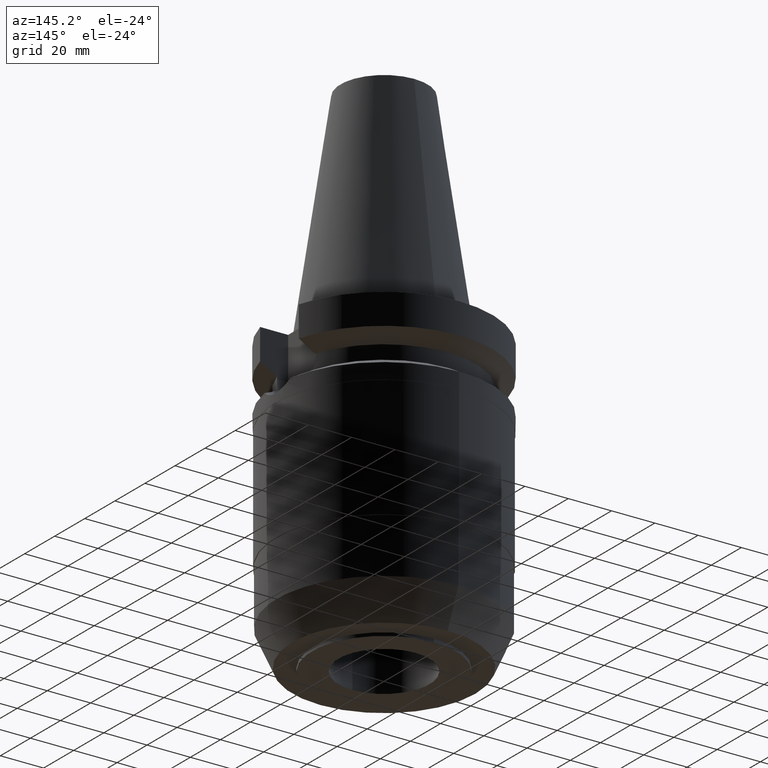
[diagram: clean part render]
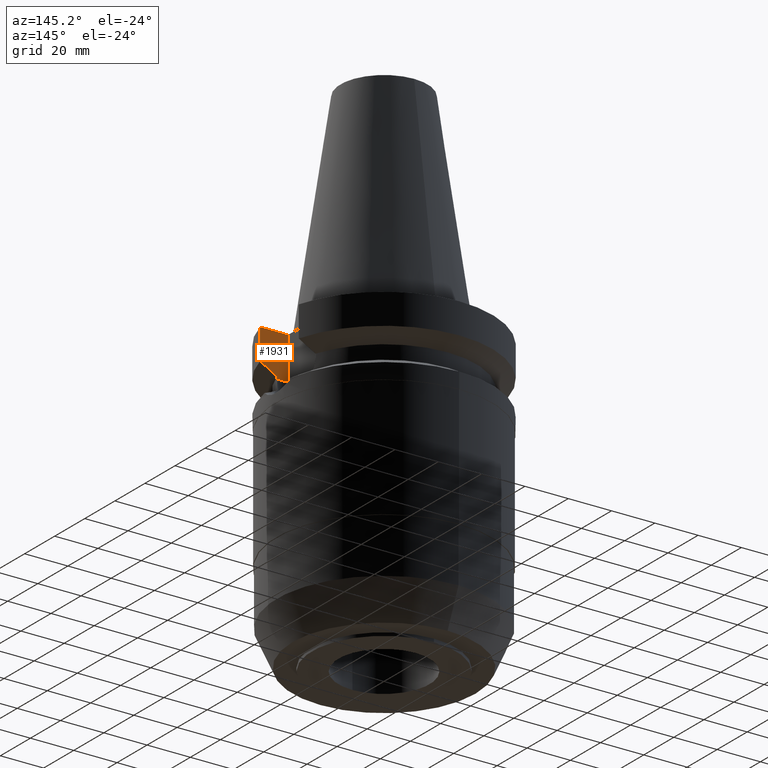
[diagram: same view with one face highlighted and labeled with its STEP entity id]
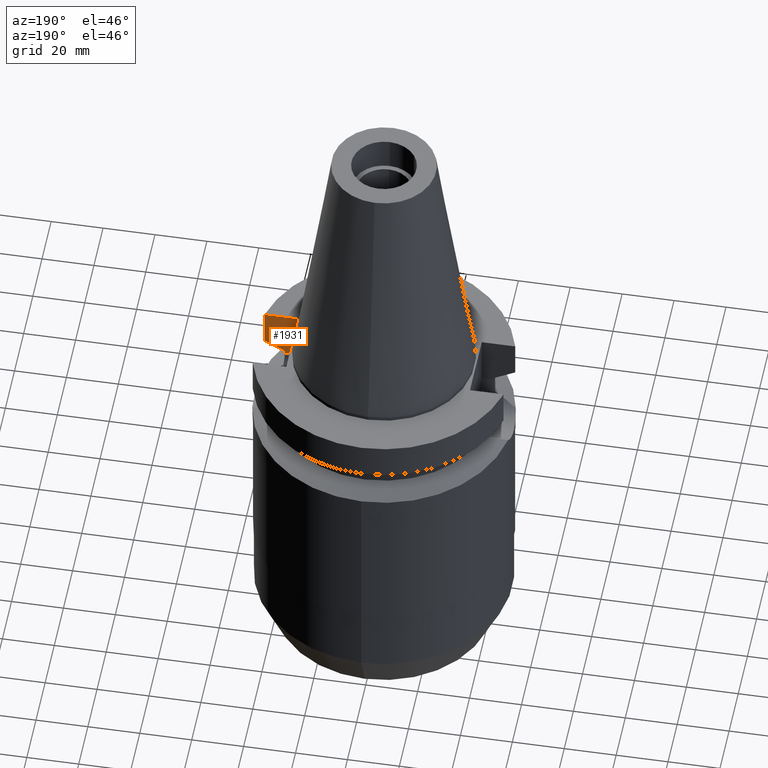
[diagram: same view with one face highlighted and labeled with its STEP entity id]
A machine part, auxiliary view. The second image highlights one B-rep face of the part: STEP entity #1931.
A second angle (auxiliary view) of the same face is appended — the face is thin or edge-on in the first view.
In plain terms, the highlighted planar face has unit normal (0, -1, 0).
Its self-contained STEP definition (entity closure, byte-faithful):
#475=DIRECTION('',(-1.E0,-3.510427359435E-14,0.E0));
#476=VECTOR('',#475,5.110831884819E0);
#477=CARTESIAN_POINT('',(4.051083188482E1,-1.285E1,-2.115E1));
#478=LINE('',#477,#476);
#702=DIRECTION('',(0.E0,0.E0,1.E0));
#703=VECTOR('',#702,1.965E1);
#704=CARTESIAN_POINT('',(3.54E1,-1.285E1,-2.115E1));
#705=LINE('',#704,#703);
#746=DIRECTION('',(1.E0,0.E0,0.E0));
#747=VECTOR('',#746,1.292057015392E1);
#748=CARTESIAN_POINT('',(3.54E1,-1.285E1,-1.5E0));
#749=LINE('',#748,#747);
#849=DIRECTION('',(-9.394719324447E-7,-2.961776035332E-6,-9.999999999952E-1));
#850=VECTOR('',#849,1.157154443732E0);
#851=CARTESIAN_POINT('',(4.051083297193E1,-1.284999657277E1,-1.999284555627E1));
#852=LINE('',#851,#850);
#856=CARTESIAN_POINT('',(4.051083188482E1,-1.285E1,-2.115E1));
#905=DIRECTION('',(-7.244853945568E-8,-2.724320977615E-7,-1.E0));
#906=VECTOR('',#905,1.416265767283E1);
#907=CARTESIAN_POINT('',(4.832057015392E1,-1.285E1,-1.5E0));
#908=LINE('',#907,#906);
#912=CARTESIAN_POINT('',(4.051083297193E1,-1.284999657277E1,-1.999284555627E1));
#913=CARTESIAN_POINT('',(4.138011667874E1,-1.284999657277E1,-1.951445436022E1));
#914=CARTESIAN_POINT('',(4.311729625638E1,-1.285000211382E1,-1.855526475180E1));
#915=CARTESIAN_POINT('',(4.572065046215E1,-1.284999774247E1,-1.711204885682E1));
#916=CARTESIAN_POINT('',(4.745408728565E1,-1.285000385836E1,-1.614611801699E1));
#917=CARTESIAN_POINT('',(4.832056912786E1,-1.285000385836E1,-1.566265767283E1));
#1138=VERTEX_POINT('',#856);
#1139=CARTESIAN_POINT('',(3.54E1,-1.285E1,-2.115E1));
#1140=VERTEX_POINT('',#1139);
#1167=CARTESIAN_POINT('',(4.051083188482E1,-1.285E1,-1.999281925465E1));
#1169=VERTEX_POINT('',#1167);
#1193=CARTESIAN_POINT('',(3.54E1,-1.285E1,-1.5E0));
#1194=VERTEX_POINT('',#1193);
#1195=CARTESIAN_POINT('',(4.832057015392E1,-1.285E1,-1.5E0));
#1196=VERTEX_POINT('',#1195);
#1213=CARTESIAN_POINT('',(4.832057015392E1,-1.285E1,-1.566269223573E1));
#1215=VERTEX_POINT('',#1213);
#1918=CARTESIAN_POINT('',(3.54E1,-1.285E1,-1.5E0));
#1919=DIRECTION('',(0.E0,-1.E0,0.E0));
#1920=DIRECTION('',(0.E0,0.E0,-1.E0));
#1921=AXIS2_PLACEMENT_3D('',#1918,#1919,#1920);
#1922=PLANE('',#1921);
#1923=ORIENTED_EDGE('',*,*,#1878,.F.);
#1924=ORIENTED_EDGE('',*,*,#1896,.T.);
#1925=ORIENTED_EDGE('',*,*,#1911,.F.);
#1926=ORIENTED_EDGE('',*,*,#1818,.F.);
#1927=ORIENTED_EDGE('',*,*,#1798,.F.);
#1928=ORIENTED_EDGE('',*,*,#1661,.F.);
#1929=EDGE_LOOP('',(#1923,#1924,#1925,#1926,#1927,#1928));
#1930=FACE_OUTER_BOUND('',#1929,.F.);
#918=B_SPLINE_CURVE_WITH_KNOTS('',3,(#912,#913,#914,#915,#916,#917),
.UNSPECIFIED.,.F.,.F.,(4,1,1,4),(0.E0,3.333333333333E-1,6.666666666667E-1,1.E0),
.UNSPECIFIED.);
#1661=EDGE_CURVE('',#1138,#1140,#478,.T.);
#1798=EDGE_CURVE('',#1140,#1194,#705,.T.);
#1818=EDGE_CURVE('',#1194,#1196,#749,.T.);
#1878=EDGE_CURVE('',#1169,#1138,#852,.T.);
#1896=EDGE_CURVE('',#1169,#1215,#918,.T.);
#1911=EDGE_CURVE('',#1196,#1215,#908,.T.);
#1931=ADVANCED_FACE('',(#1930),#1922,.F.);